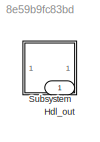
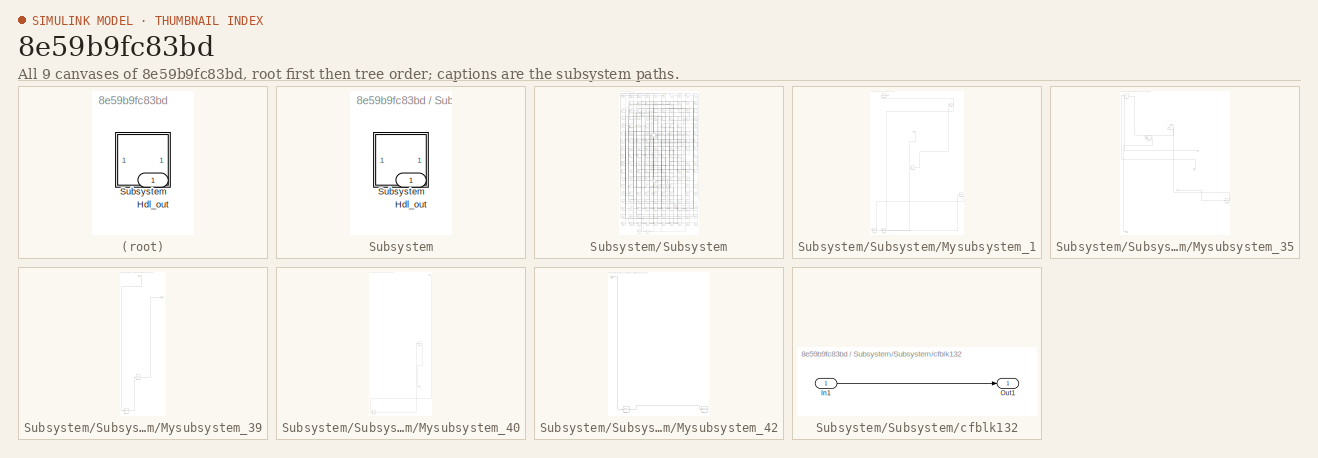
[diagram: thumbnail index - all 9 canvases of the model, root first then tree order]
MODEL slx_8e59b9fc83bd
KIND model
CONFIG AbsTol = auto
CONFIG EnableMultiTasking = off
CONFIG FixedStep = auto
CONFIG MaxStep = auto
CONFIG MinStep = auto
CONFIG RelTol = 1e-3
CONFIG SampleTimeConstraint = Unconstrained
CONFIG SolverName = VariableStepAuto
CONFIG StartTime = 0.0
CONFIG StopTime = 10.0
BLOCK [Outport] Hdl_out
  OutDataTypeStr = uint8
BLOCK [SubSystem] Subsystem
BLOCK [Outport] Subsystem/Hdl_out
  OutDataTypeStr = uint8
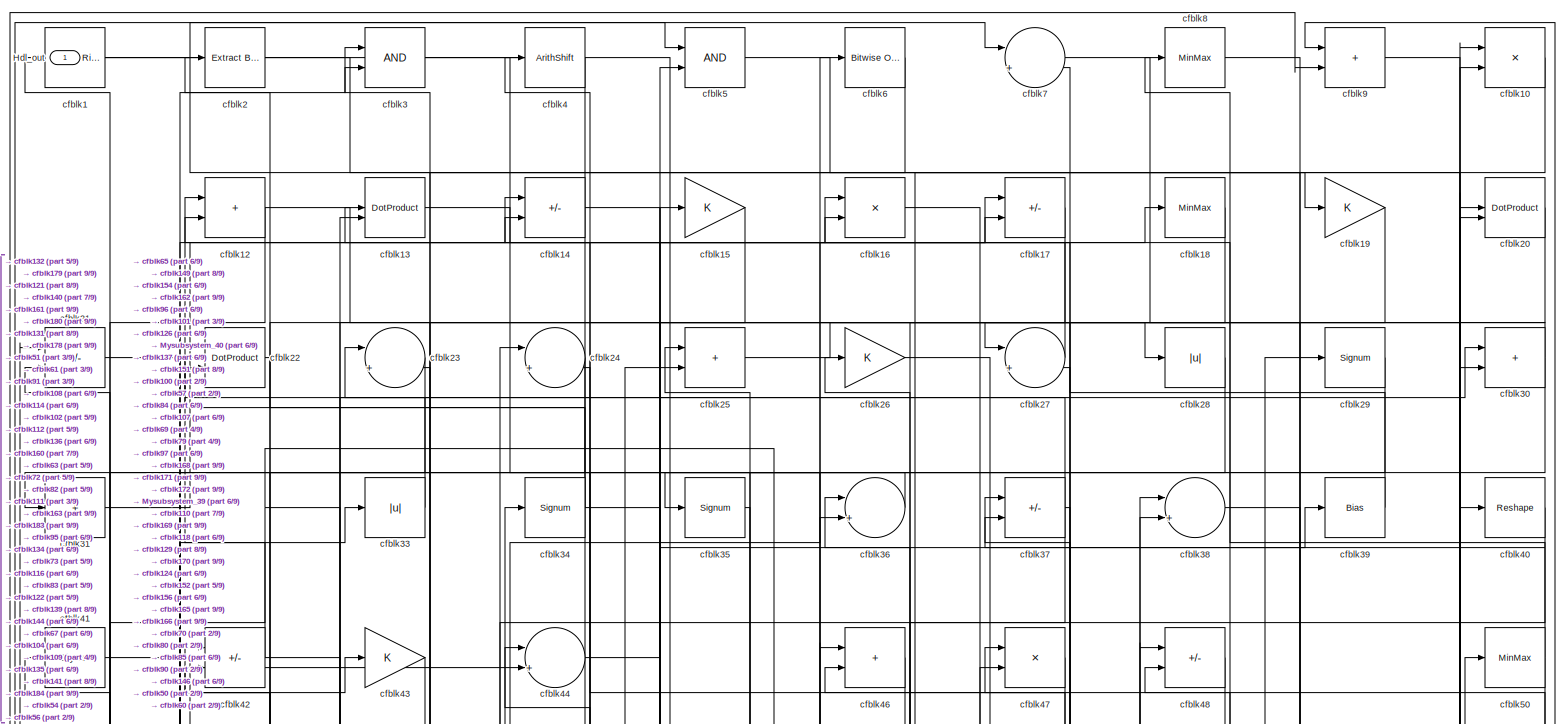
[diagram: Subsystem/Subsystem - part 1/9, full width, top band]
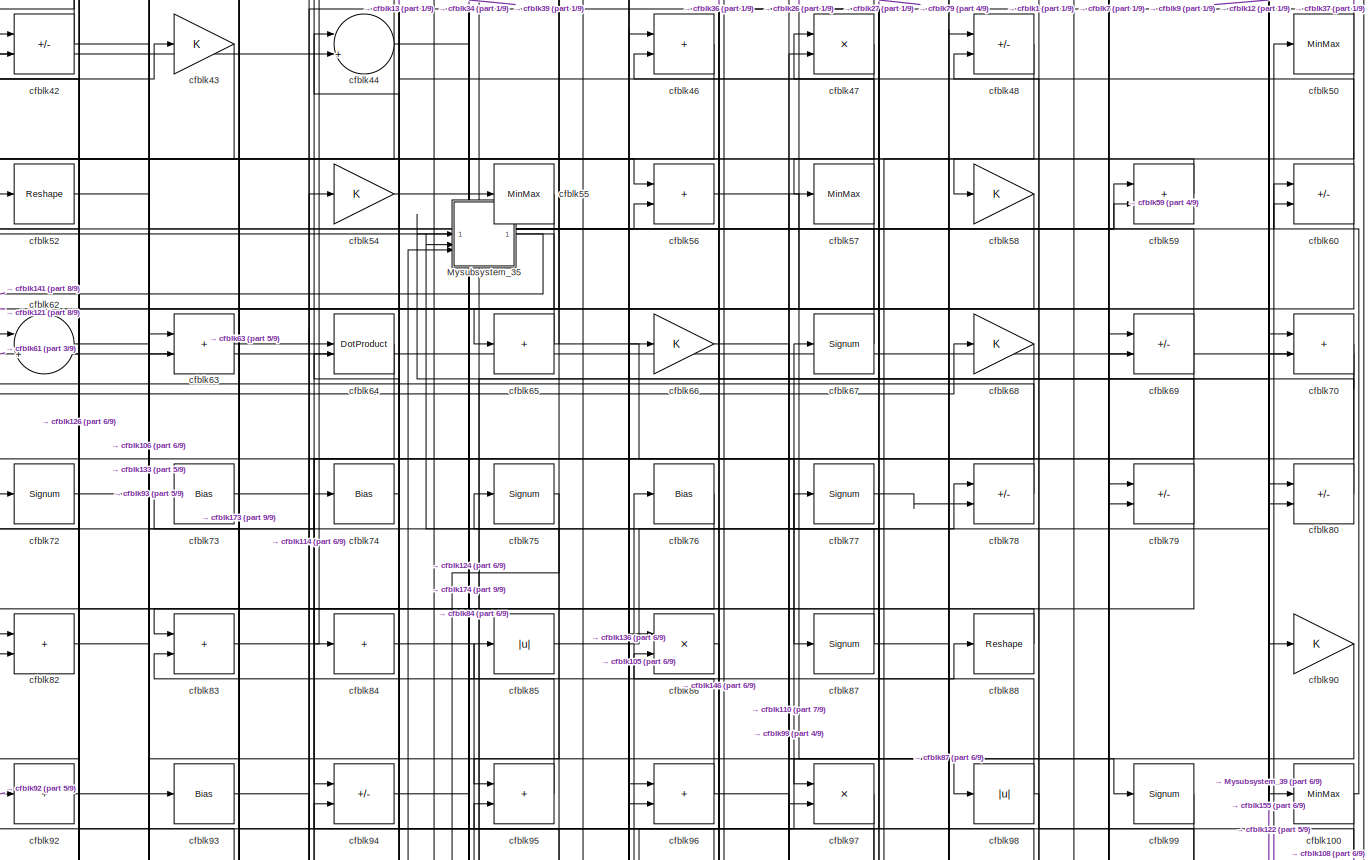
[diagram: Subsystem/Subsystem - part 2/9, full width, middle band]
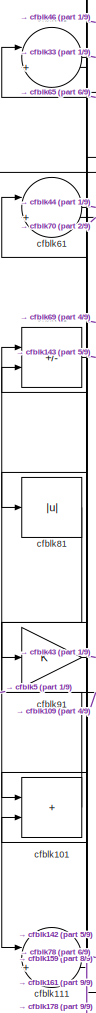
[diagram: Subsystem/Subsystem - part 3/9, middle left region]
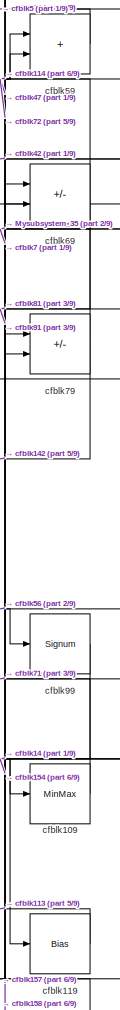
[diagram: Subsystem/Subsystem - part 4/9, middle right region]
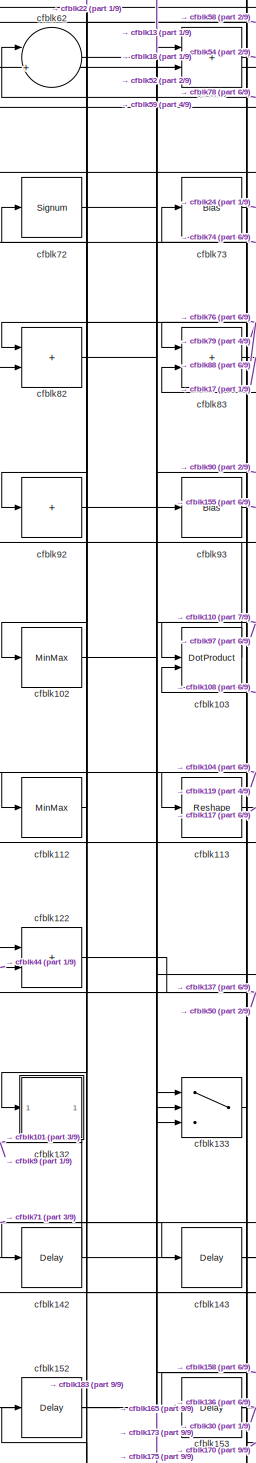
[diagram: Subsystem/Subsystem - part 5/9, middle left region]
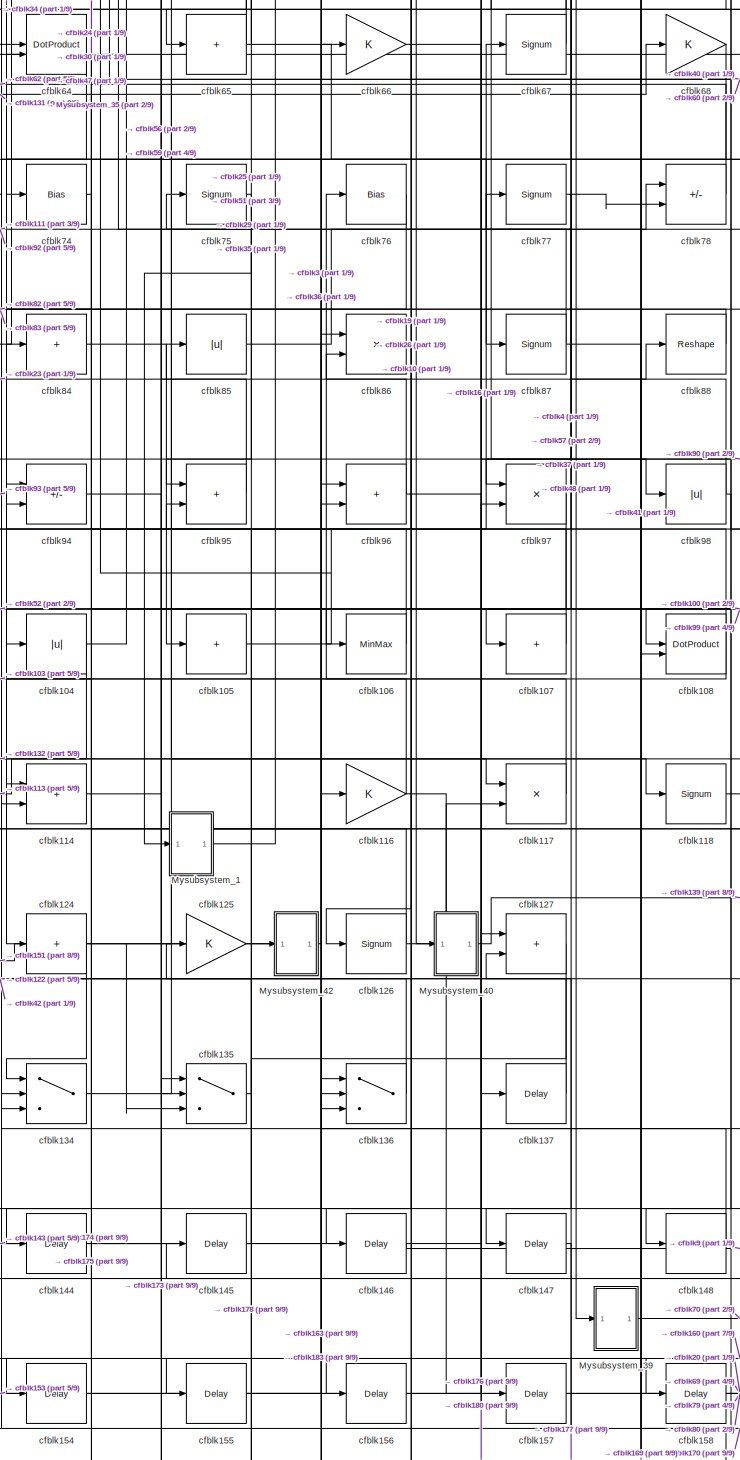
[diagram: Subsystem/Subsystem - part 6/9, central region]
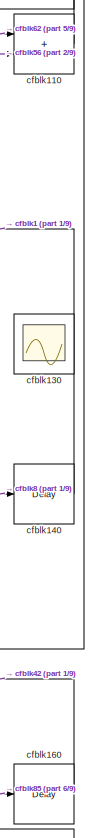
[diagram: Subsystem/Subsystem - part 7/9, bottom right region]
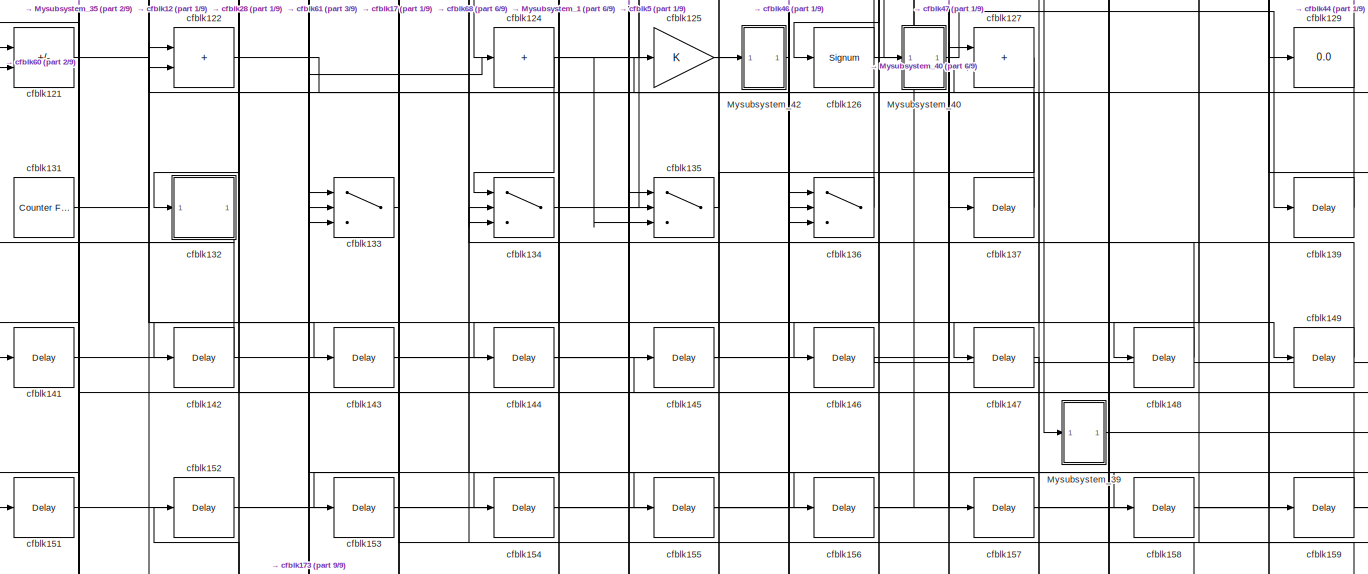
[diagram: Subsystem/Subsystem - part 8/9, full width, bottom band]
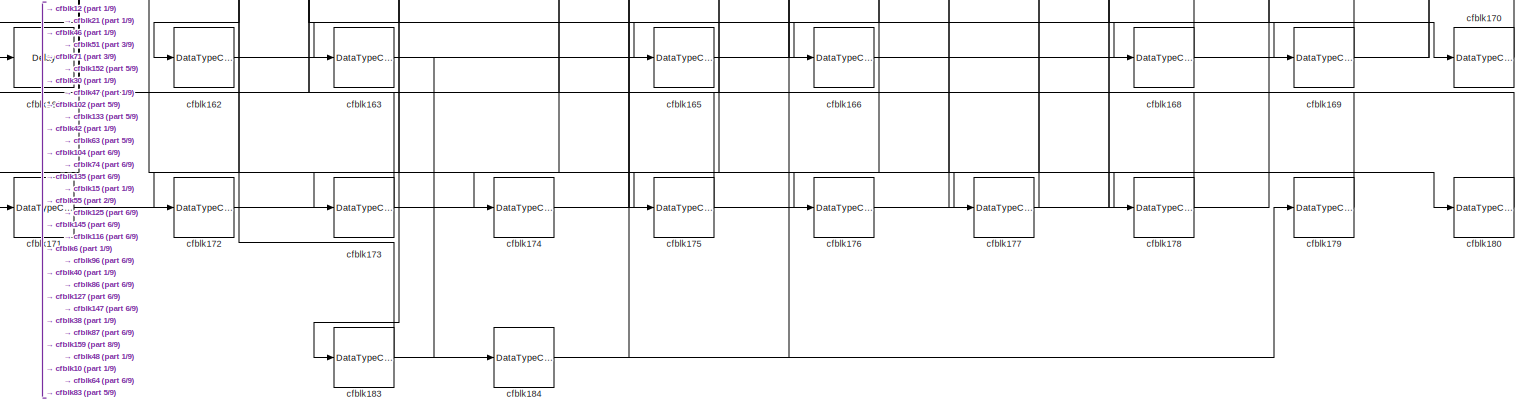
[diagram: Subsystem/Subsystem - part 9/9, full width, bottom band]
BLOCK [SubSystem] Subsystem/Subsystem
BLOCK [Outport] Subsystem/Subsystem/Hdl_out
  OutDataTypeStr = uint8
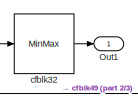
[diagram: Subsystem/Subsystem/Mysubsystem_1 - part 1/3, top left region]
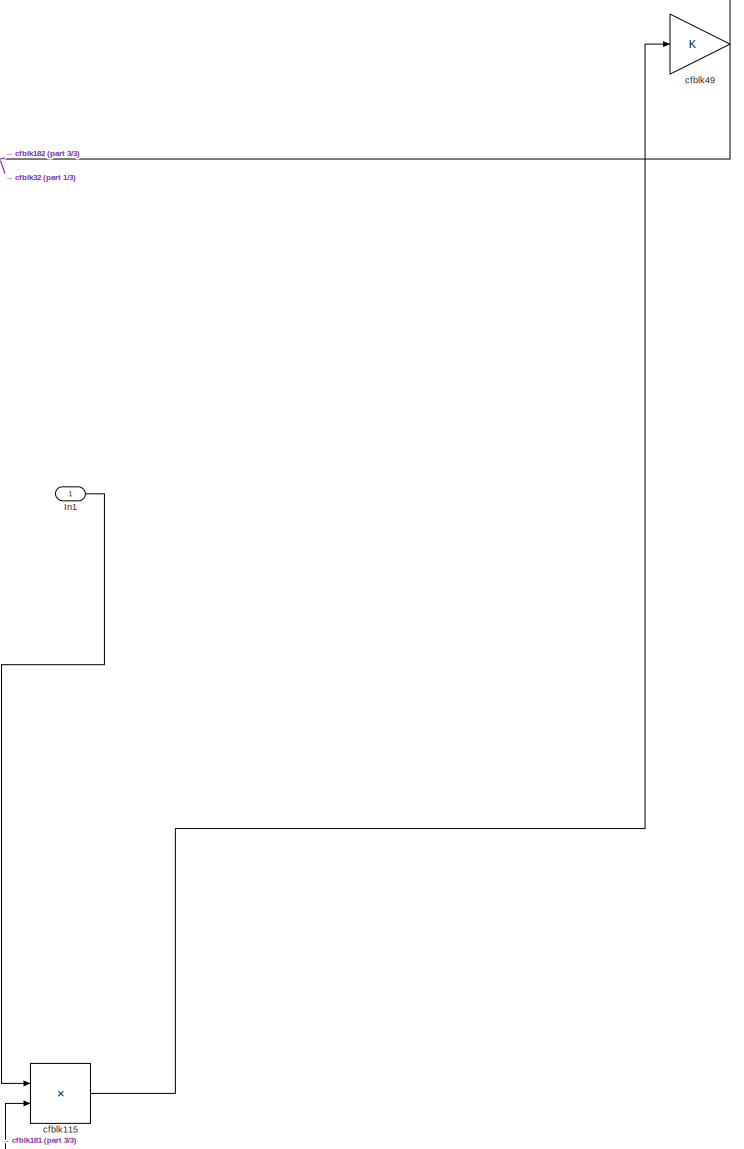
[diagram: Subsystem/Subsystem/Mysubsystem_1 - part 2/3, top center region]
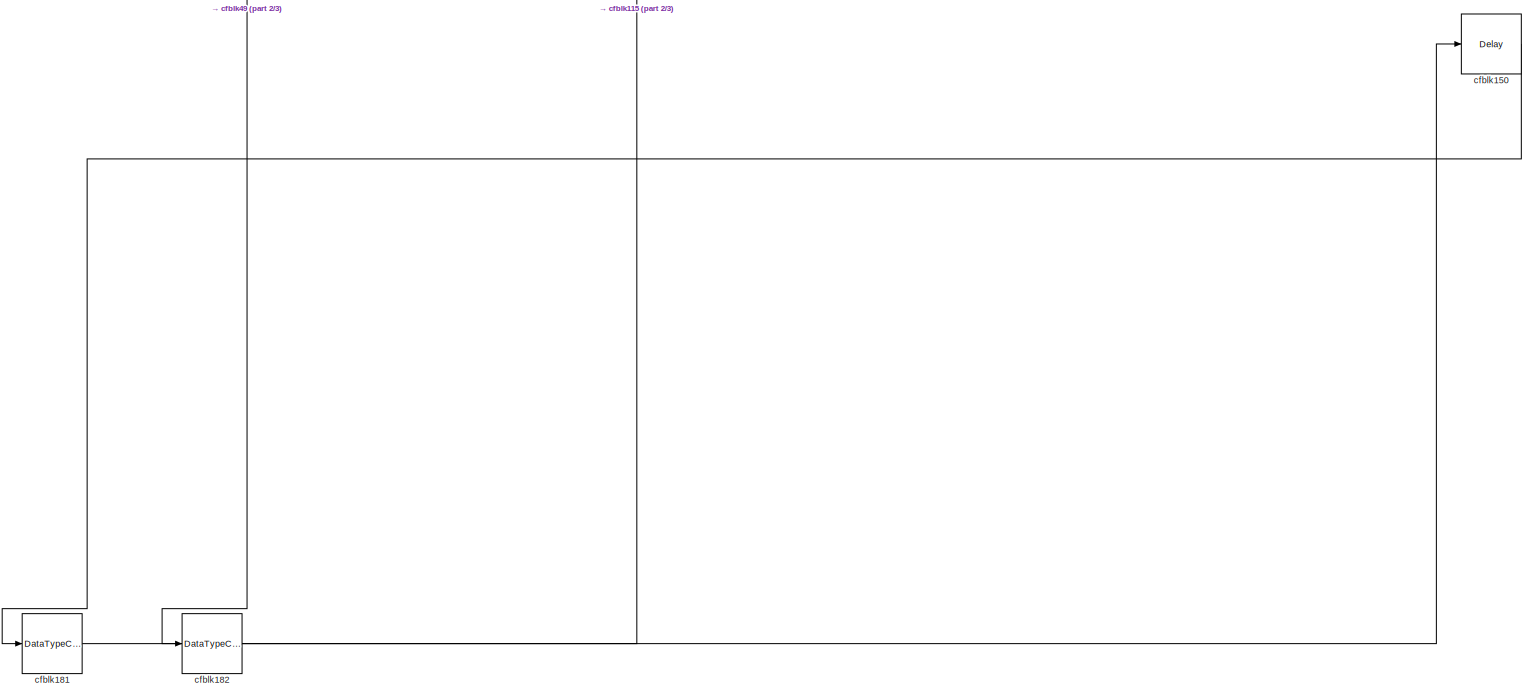
[diagram: Subsystem/Subsystem/Mysubsystem_1 - part 3/3, full width, bottom band]
BLOCK [SubSystem] Subsystem/Subsystem/Mysubsystem_1
  RTWFcnName = Mysubsystem_1
  RTWFcnNameOpts = User specified
  RTWFileNameOpts = Use function name
  RTWSystemCode = Reusable function
  TreatAsAtomicUnit = on
BLOCK [Inport] Subsystem/Subsystem/Mysubsystem_1/In1
BLOCK [Outport] Subsystem/Subsystem/Mysubsystem_1/Out1
BLOCK [Product] Subsystem/Subsystem/Mysubsystem_1/cfblk115
  Inputs = */
  RndMeth = Zero
  SaturateOnIntegerOverflow = on
BLOCK [Delay] Subsystem/Subsystem/Mysubsystem_1/cfblk150
  InputPortMap = u0
  SampleTime = 1
BLOCK [DataTypeConversion] Subsystem/Subsystem/Mysubsystem_1/cfblk181
  OutDataTypeStr = uint8
  RndMeth = Floor
  SaturateOnIntegerOverflow = off
BLOCK [DataTypeConversion] Subsystem/Subsystem/Mysubsystem_1/cfblk182
  OutDataTypeStr = uint8
  RndMeth = Floor
  SaturateOnIntegerOverflow = off
BLOCK [MinMax] Subsystem/Subsystem/Mysubsystem_1/cfblk32
BLOCK [Gain] Subsystem/Subsystem/Mysubsystem_1/cfblk49
BLOCK [SubSystem] Subsystem/Subsystem/Mysubsystem_35
  RTWFcnName = Mysubsystem_35
  RTWFcnNameOpts = User specified
  RTWFileNameOpts = Use function name
  RTWSystemCode = Reusable function
  TreatAsAtomicUnit = on
BLOCK [Inport] Subsystem/Subsystem/Mysubsystem_35/In1
BLOCK [Inport] Subsystem/Subsystem/Mysubsystem_35/In2
  Port = 2
BLOCK [Inport] Subsystem/Subsystem/Mysubsystem_35/In3
  Port = 3
BLOCK [Outport] Subsystem/Subsystem/Mysubsystem_35/Out1
BLOCK [Sum] Subsystem/Subsystem/Mysubsystem_35/cfblk11
  IconShape = rectangular
BLOCK [Reshape] Subsystem/Subsystem/Mysubsystem_35/cfblk120
BLOCK [Sum] Subsystem/Subsystem/Mysubsystem_35/cfblk45
  IconShape = rectangular
  Inputs = +
BLOCK [Sum] Subsystem/Subsystem/Mysubsystem_35/cfblk53
  IconShape = rectangular
BLOCK [SubSystem] Subsystem/Subsystem/Mysubsystem_39
  RTWFcnName = Mysubsystem_39
  RTWFcnNameOpts = User specified
  RTWFileNameOpts = Use function name
  RTWSystemCode = Reusable function
  TreatAsAtomicUnit = on
BLOCK [Inport] Subsystem/Subsystem/Mysubsystem_39/In1
BLOCK [Outport] Subsystem/Subsystem/Mysubsystem_39/Out1
BLOCK [Delay] Subsystem/Subsystem/Mysubsystem_39/cfblk138
  InputPortMap = u0
  SampleTime = 1
BLOCK [DataTypeConversion] Subsystem/Subsystem/Mysubsystem_39/cfblk167
  OutDataTypeStr = uint8
  RndMeth = Floor
  SaturateOnIntegerOverflow = off
BLOCK [SubSystem] Subsystem/Subsystem/Mysubsystem_40
  RTWFcnName = Mysubsystem_40
  RTWFcnNameOpts = User specified
  RTWFileNameOpts = Use function name
  RTWSystemCode = Reusable function
  TreatAsAtomicUnit = on
BLOCK [Inport] Subsystem/Subsystem/Mysubsystem_40/In1
BLOCK [Outport] Subsystem/Subsystem/Mysubsystem_40/Out1
BLOCK [DataTypeConversion] Subsystem/Subsystem/Mysubsystem_40/cfblk164
  OutDataTypeStr = uint8
  RndMeth = Floor
  SaturateOnIntegerOverflow = off
BLOCK [Signum] Subsystem/Subsystem/Mysubsystem_40/cfblk89
BLOCK [SubSystem] Subsystem/Subsystem/Mysubsystem_42
  RTWFcnName = Mysubsystem_42
  RTWFcnNameOpts = User specified
  RTWFileNameOpts = Use function name
  RTWSystemCode = Reusable function
  TreatAsAtomicUnit = on
BLOCK [Inport] Subsystem/Subsystem/Mysubsystem_42/In1
BLOCK [Signum] Subsystem/Subsystem/Mysubsystem_42/cfblk123
BLOCK [ToWorkspace] Subsystem/Subsystem/Mysubsystem_42/cfblk128
  MaxDataPoints = inf
  SampleTime = -1
  SaveFormat = Timeseries
  VariableName = simout
BLOCK [Reference] Subsystem/Subsystem/cfblk1  REF=hdlsllib/Logic and Bit
Operations/Detect Rise
Nonnegative
  SourceBlock = hdlsllib/Logic and Bit\nOperations/Detect Rise\nNonnegative
  SourceType = Detect Rise Nonnegative
BLOCK [Product] Subsystem/Subsystem/cfblk10
  Inputs = */
  OutDataTypeStr = uint8
  RndMeth = Zero
  SaturateOnIntegerOverflow = on
BLOCK [MinMax] Subsystem/Subsystem/cfblk100
  OutDataTypeStr = uint8
BLOCK [Sum] Subsystem/Subsystem/cfblk101
  IconShape = rectangular
  OutDataTypeStr = uint8
BLOCK [MinMax] Subsystem/Subsystem/cfblk102
  OutDataTypeStr = uint8
BLOCK [DotProduct] Subsystem/Subsystem/cfblk103
  OutDataTypeStr = uint8
BLOCK [Abs] Subsystem/Subsystem/cfblk104
  OutDataTypeStr = uint8
  SaturateOnIntegerOverflow = off
BLOCK [Sum] Subsystem/Subsystem/cfblk105
  IconShape = rectangular
  Inputs = +
  OutDataTypeStr = uint8
BLOCK [MinMax] Subsystem/Subsystem/cfblk106
  OutDataTypeStr = uint8
BLOCK [Sum] Subsystem/Subsystem/cfblk107
  IconShape = rectangular
  Inputs = +
  OutDataTypeStr = uint8
BLOCK [DotProduct] Subsystem/Subsystem/cfblk108
  OutDataTypeStr = uint8
BLOCK [MinMax] Subsystem/Subsystem/cfblk109
  OutDataTypeStr = uint8
BLOCK [Sum] Subsystem/Subsystem/cfblk110
  IconShape = rectangular
  OutDataTypeStr = uint8
BLOCK [Sum] Subsystem/Subsystem/cfblk111
  Inputs = |++
  OutDataTypeStr = uint8
BLOCK [MinMax] Subsystem/Subsystem/cfblk112
  OutDataTypeStr = uint8
BLOCK [Reshape] Subsystem/Subsystem/cfblk113
BLOCK [Sum] Subsystem/Subsystem/cfblk114
  IconShape = rectangular
  OutDataTypeStr = uint8
BLOCK [Gain] Subsystem/Subsystem/cfblk116
  OutDataTypeStr = uint8
BLOCK [Product] Subsystem/Subsystem/cfblk117
  Inputs = */
  OutDataTypeStr = uint8
  RndMeth = Zero
  SaturateOnIntegerOverflow = on
BLOCK [Signum] Subsystem/Subsystem/cfblk118
BLOCK [Bias] Subsystem/Subsystem/cfblk119
  Bias = 0.0
  SaturateOnIntegerOverflow = off
BLOCK [Sum] Subsystem/Subsystem/cfblk12
  IconShape = rectangular
  OutDataTypeStr = uint8
BLOCK [Sum] Subsystem/Subsystem/cfblk121
  IconShape = rectangular
  Inputs = +-
  OutDataTypeStr = uint8
BLOCK [Sum] Subsystem/Subsystem/cfblk122
  IconShape = rectangular
  OutDataTypeStr = uint8
BLOCK [Sum] Subsystem/Subsystem/cfblk124
  IconShape = rectangular
  Inputs = +
  OutDataTypeStr = uint8
BLOCK [Gain] Subsystem/Subsystem/cfblk125
  OutDataTypeStr = uint8
BLOCK [Signum] Subsystem/Subsystem/cfblk126
BLOCK [Sum] Subsystem/Subsystem/cfblk127
  IconShape = rectangular
  OutDataTypeStr = uint8
BLOCK [Display] Subsystem/Subsystem/cfblk129
  Decimation = 1
BLOCK [DotProduct] Subsystem/Subsystem/cfblk13
  OutDataTypeStr = uint8
BLOCK [Scope] Subsystem/Subsystem/cfblk130
  Floating = on
  NumInputPorts = 1
  ScopeSpecificationString = Simulink.scopes.TimeScopeBlockCfg('CurrentConfiguration', extmgr.ConfigurationSet(extmgr.Configuration('Core','General UI',true,'FigureColor',[0.156862745098039 0.156862745098039 0.156862745098039]),extmgr.Configuration('Core','Source UI',true),extmgr.Configuration('Sources','WiredSimulink',true,'DataLoggingSaveFormat','StructureWithTime','DataLoggingLimitDataPoints',true,'DataLoggingDecimation','...<+2674ch>
BLOCK [Reference] Subsystem/Subsystem/cfblk131  REF=hdlsllib/Sources/Counter
Free-Running
  SourceBlock = hdlsllib/Sources/Counter\nFree-Running
  SourceType = Counter Free-Running
BLOCK [SubSystem] Subsystem/Subsystem/cfblk132
  LibrarySourceBlock = hdlsllib/Ports &\nSubsystems/Subsystem
BLOCK [Inport] Subsystem/Subsystem/cfblk132/In1
BLOCK [Outport] Subsystem/Subsystem/cfblk132/Out1
BLOCK [Switch] Subsystem/Subsystem/cfblk133
  InputSameDT = off
  OutDataTypeStr = uint8
  SaturateOnIntegerOverflow = off
BLOCK [Switch] Subsystem/Subsystem/cfblk134
  InputSameDT = off
  OutDataTypeStr = uint8
  SaturateOnIntegerOverflow = off
BLOCK [Switch] Subsystem/Subsystem/cfblk135
  InputSameDT = off
  OutDataTypeStr = uint8
  SaturateOnIntegerOverflow = off
BLOCK [Switch] Subsystem/Subsystem/cfblk136
  InputSameDT = off
  OutDataTypeStr = uint8
  SaturateOnIntegerOverflow = off
BLOCK [Delay] Subsystem/Subsystem/cfblk137
  InputPortMap = u0
  SampleTime = 1
BLOCK [Delay] Subsystem/Subsystem/cfblk139
  InputPortMap = u0
  SampleTime = 1
BLOCK [Sum] Subsystem/Subsystem/cfblk14
  IconShape = rectangular
  Inputs = +-
  OutDataTypeStr = uint8
BLOCK [Delay] Subsystem/Subsystem/cfblk140
  InputPortMap = u0
  SampleTime = 1
BLOCK [Delay] Subsystem/Subsystem/cfblk141
  InputPortMap = u0
  SampleTime = 1
BLOCK [Delay] Subsystem/Subsystem/cfblk142
  InputPortMap = u0
  SampleTime = 1
BLOCK [Delay] Subsystem/Subsystem/cfblk143
  InputPortMap = u0
  SampleTime = 1
BLOCK [Delay] Subsystem/Subsystem/cfblk144
  InputPortMap = u0
  SampleTime = 1
BLOCK [Delay] Subsystem/Subsystem/cfblk145
  InputPortMap = u0
  SampleTime = 1
BLOCK [Delay] Subsystem/Subsystem/cfblk146
  InputPortMap = u0
  SampleTime = 1
BLOCK [Delay] Subsystem/Subsystem/cfblk147
  InputPortMap = u0
  SampleTime = 1
BLOCK [Delay] Subsystem/Subsystem/cfblk148
  InputPortMap = u0
  SampleTime = 1
BLOCK [Delay] Subsystem/Subsystem/cfblk149
  InputPortMap = u0
  SampleTime = 1
BLOCK [Gain] Subsystem/Subsystem/cfblk15
  OutDataTypeStr = uint8
BLOCK [Delay] Subsystem/Subsystem/cfblk151
  InputPortMap = u0
  SampleTime = 1
BLOCK [Delay] Subsystem/Subsystem/cfblk152
  InputPortMap = u0
  SampleTime = 1
BLOCK [Delay] Subsystem/Subsystem/cfblk153
  InputPortMap = u0
  SampleTime = 1
BLOCK [Delay] Subsystem/Subsystem/cfblk154
  InputPortMap = u0
  SampleTime = 1
BLOCK [Delay] Subsystem/Subsystem/cfblk155
  InputPortMap = u0
  SampleTime = 1
BLOCK [Delay] Subsystem/Subsystem/cfblk156
  InputPortMap = u0
  SampleTime = 1
BLOCK [Delay] Subsystem/Subsystem/cfblk157
  InputPortMap = u0
  SampleTime = 1
BLOCK [Delay] Subsystem/Subsystem/cfblk158
  InputPortMap = u0
  SampleTime = 1
BLOCK [Delay] Subsystem/Subsystem/cfblk159
  InputPortMap = u0
  SampleTime = 1
BLOCK [Product] Subsystem/Subsystem/cfblk16
  Inputs = */
  OutDataTypeStr = uint8
  RndMeth = Zero
  SaturateOnIntegerOverflow = on
BLOCK [Delay] Subsystem/Subsystem/cfblk160
  InputPortMap = u0
  SampleTime = 1
BLOCK [Delay] Subsystem/Subsystem/cfblk161
  InputPortMap = u0
  SampleTime = 1
BLOCK [DataTypeConversion] Subsystem/Subsystem/cfblk162
  OutDataTypeStr = uint8
  RndMeth = Floor
  SaturateOnIntegerOverflow = off
BLOCK [DataTypeConversion] Subsystem/Subsystem/cfblk163
  OutDataTypeStr = uint8
  RndMeth = Floor
  SaturateOnIntegerOverflow = off
BLOCK [DataTypeConversion] Subsystem/Subsystem/cfblk165
  OutDataTypeStr = uint8
  RndMeth = Floor
  SaturateOnIntegerOverflow = off
BLOCK [DataTypeConversion] Subsystem/Subsystem/cfblk166
  OutDataTypeStr = uint8
  RndMeth = Floor
  SaturateOnIntegerOverflow = off
BLOCK [DataTypeConversion] Subsystem/Subsystem/cfblk168
  OutDataTypeStr = uint8
  RndMeth = Floor
  SaturateOnIntegerOverflow = off
BLOCK [DataTypeConversion] Subsystem/Subsystem/cfblk169
  OutDataTypeStr = uint8
  RndMeth = Floor
  SaturateOnIntegerOverflow = off
BLOCK [Sum] Subsystem/Subsystem/cfblk17
  IconShape = rectangular
  Inputs = +-
  OutDataTypeStr = uint8
BLOCK [DataTypeConversion] Subsystem/Subsystem/cfblk170
  OutDataTypeStr = uint8
  RndMeth = Floor
  SaturateOnIntegerOverflow = off
BLOCK [DataTypeConversion] Subsystem/Subsystem/cfblk171
  OutDataTypeStr = uint8
  RndMeth = Floor
  SaturateOnIntegerOverflow = off
BLOCK [DataTypeConversion] Subsystem/Subsystem/cfblk172
  OutDataTypeStr = uint8
  RndMeth = Floor
  SaturateOnIntegerOverflow = off
BLOCK [DataTypeConversion] Subsystem/Subsystem/cfblk173
  OutDataTypeStr = uint8
  RndMeth = Floor
  SaturateOnIntegerOverflow = off
BLOCK [DataTypeConversion] Subsystem/Subsystem/cfblk174
  OutDataTypeStr = uint8
  RndMeth = Floor
  SaturateOnIntegerOverflow = off
BLOCK [DataTypeConversion] Subsystem/Subsystem/cfblk175
  OutDataTypeStr = uint8
  RndMeth = Floor
  SaturateOnIntegerOverflow = off
BLOCK [DataTypeConversion] Subsystem/Subsystem/cfblk176
  OutDataTypeStr = uint8
  RndMeth = Floor
  SaturateOnIntegerOverflow = off
BLOCK [DataTypeConversion] Subsystem/Subsystem/cfblk177
  OutDataTypeStr = uint8
  RndMeth = Floor
  SaturateOnIntegerOverflow = off
BLOCK [DataTypeConversion] Subsystem/Subsystem/cfblk178
  OutDataTypeStr = uint8
  RndMeth = Floor
  SaturateOnIntegerOverflow = off
BLOCK [DataTypeConversion] Subsystem/Subsystem/cfblk179
  OutDataTypeStr = uint8
  RndMeth = Floor
  SaturateOnIntegerOverflow = off
BLOCK [MinMax] Subsystem/Subsystem/cfblk18
  OutDataTypeStr = uint8
BLOCK [DataTypeConversion] Subsystem/Subsystem/cfblk180
  OutDataTypeStr = uint8
  RndMeth = Floor
  SaturateOnIntegerOverflow = off
BLOCK [DataTypeConversion] Subsystem/Subsystem/cfblk183
  OutDataTypeStr = uint8
  RndMeth = Floor
  SaturateOnIntegerOverflow = off
BLOCK [DataTypeConversion] Subsystem/Subsystem/cfblk184
  OutDataTypeStr = uint8
  RndMeth = Floor
  SaturateOnIntegerOverflow = off
BLOCK [Gain] Subsystem/Subsystem/cfblk19
  OutDataTypeStr = uint8
BLOCK [Reference] Subsystem/Subsystem/cfblk2  REF=simulink/Logic and Bit
Operations/Extract Bits
  LibrarySourceBlock = hdlsllib/Logic and Bit\nOperations/Extract Bits
  SourceBlock = simulink/Logic and Bit\nOperations/Extract Bits
  SourceType = Extract Bits
BLOCK [DotProduct] Subsystem/Subsystem/cfblk20
  OutDataTypeStr = uint8
BLOCK [Sum] Subsystem/Subsystem/cfblk21
  IconShape = rectangular
  Inputs = +-
  OutDataTypeStr = uint8
BLOCK [DotProduct] Subsystem/Subsystem/cfblk22
  OutDataTypeStr = uint8
BLOCK [Sum] Subsystem/Subsystem/cfblk23
  Inputs = |++
  OutDataTypeStr = uint8
BLOCK [Sum] Subsystem/Subsystem/cfblk24
  Inputs = |++
  OutDataTypeStr = uint8
BLOCK [Sum] Subsystem/Subsystem/cfblk25
  IconShape = rectangular
  OutDataTypeStr = uint8
BLOCK [Gain] Subsystem/Subsystem/cfblk26
  OutDataTypeStr = uint8
BLOCK [Sum] Subsystem/Subsystem/cfblk27
  Inputs = |++
  OutDataTypeStr = uint8
BLOCK [Abs] Subsystem/Subsystem/cfblk28
  OutDataTypeStr = uint8
  SaturateOnIntegerOverflow = off
BLOCK [Signum] Subsystem/Subsystem/cfblk29
BLOCK [Logic] Subsystem/Subsystem/cfblk3
  AllPortsSameDT = off
  OutDataTypeStr = boolean
BLOCK [Sum] Subsystem/Subsystem/cfblk30
  IconShape = rectangular
  OutDataTypeStr = uint8
BLOCK [Sum] Subsystem/Subsystem/cfblk31
  IconShape = rectangular
  Inputs = +
  OutDataTypeStr = uint8
BLOCK [Abs] Subsystem/Subsystem/cfblk33
  OutDataTypeStr = uint8
  SaturateOnIntegerOverflow = off
BLOCK [Signum] Subsystem/Subsystem/cfblk34
BLOCK [Signum] Subsystem/Subsystem/cfblk35
BLOCK [Sum] Subsystem/Subsystem/cfblk36
  Inputs = |++
  OutDataTypeStr = uint8
BLOCK [Sum] Subsystem/Subsystem/cfblk37
  IconShape = rectangular
  Inputs = +-
  OutDataTypeStr = uint8
BLOCK [Sum] Subsystem/Subsystem/cfblk38
  Inputs = |++
  OutDataTypeStr = uint8
BLOCK [Bias] Subsystem/Subsystem/cfblk39
  Bias = 0.0
  SaturateOnIntegerOverflow = off
BLOCK [ArithShift] Subsystem/Subsystem/cfblk4
  BitShiftNumber = 8
  InputPortMap = u0
BLOCK [Reshape] Subsystem/Subsystem/cfblk40
BLOCK [Signum] Subsystem/Subsystem/cfblk41
BLOCK [Sum] Subsystem/Subsystem/cfblk42
  IconShape = rectangular
  Inputs = +-
  OutDataTypeStr = uint8
BLOCK [Gain] Subsystem/Subsystem/cfblk43
  OutDataTypeStr = uint8
BLOCK [Sum] Subsystem/Subsystem/cfblk44
  Inputs = |++
  OutDataTypeStr = uint8
BLOCK [Sum] Subsystem/Subsystem/cfblk46
  IconShape = rectangular
  OutDataTypeStr = uint8
BLOCK [Product] Subsystem/Subsystem/cfblk47
  Inputs = */
  OutDataTypeStr = uint8
  RndMeth = Zero
  SaturateOnIntegerOverflow = on
BLOCK [Sum] Subsystem/Subsystem/cfblk48
  IconShape = rectangular
  Inputs = +-
  OutDataTypeStr = uint8
BLOCK [Logic] Subsystem/Subsystem/cfblk5
  AllPortsSameDT = off
  OutDataTypeStr = boolean
BLOCK [MinMax] Subsystem/Subsystem/cfblk50
  OutDataTypeStr = uint8
BLOCK [Sum] Subsystem/Subsystem/cfblk51
  Inputs = |++
  OutDataTypeStr = uint8
BLOCK [Reshape] Subsystem/Subsystem/cfblk52
BLOCK [Gain] Subsystem/Subsystem/cfblk54
  OutDataTypeStr = uint8
BLOCK [MinMax] Subsystem/Subsystem/cfblk55
  OutDataTypeStr = uint8
BLOCK [Sum] Subsystem/Subsystem/cfblk56
  IconShape = rectangular
  OutDataTypeStr = uint8
BLOCK [MinMax] Subsystem/Subsystem/cfblk57
  OutDataTypeStr = uint8
BLOCK [Gain] Subsystem/Subsystem/cfblk58
  OutDataTypeStr = uint8
BLOCK [Sum] Subsystem/Subsystem/cfblk59
  IconShape = rectangular
  OutDataTypeStr = uint8
BLOCK [Reference] Subsystem/Subsystem/cfblk6  REF=simulink/Logic and Bit
Operations/Bitwise
Operator
  LibrarySourceBlock = hdlsllib/Logic and Bit\nOperations/Bitwise\nOperator
  SourceBlock = simulink/Logic and Bit\nOperations/Bitwise\nOperator
  SourceType = Bitwise Operator
BLOCK [Sum] Subsystem/Subsystem/cfblk60
  IconShape = rectangular
  Inputs = +-
  OutDataTypeStr = uint8
BLOCK [Sum] Subsystem/Subsystem/cfblk61
  Inputs = |++
  OutDataTypeStr = uint8
BLOCK [Sum] Subsystem/Subsystem/cfblk62
  Inputs = |++
  OutDataTypeStr = uint8
BLOCK [Sum] Subsystem/Subsystem/cfblk63
  IconShape = rectangular
  OutDataTypeStr = uint8
BLOCK [DotProduct] Subsystem/Subsystem/cfblk64
  OutDataTypeStr = uint8
BLOCK [Sum] Subsystem/Subsystem/cfblk65
  IconShape = rectangular
  Inputs = +
  OutDataTypeStr = uint8
BLOCK [Gain] Subsystem/Subsystem/cfblk66
  OutDataTypeStr = uint8
BLOCK [Signum] Subsystem/Subsystem/cfblk67
BLOCK [Gain] Subsystem/Subsystem/cfblk68
  OutDataTypeStr = uint8
BLOCK [Sum] Subsystem/Subsystem/cfblk69
  IconShape = rectangular
  Inputs = +-
  OutDataTypeStr = uint8
BLOCK [Sum] Subsystem/Subsystem/cfblk7
  Inputs = |++
  OutDataTypeStr = uint8
BLOCK [Sum] Subsystem/Subsystem/cfblk70
  IconShape = rectangular
  OutDataTypeStr = uint8
BLOCK [Sum] Subsystem/Subsystem/cfblk71
  IconShape = rectangular
  Inputs = +-
  OutDataTypeStr = uint8
BLOCK [Signum] Subsystem/Subsystem/cfblk72
BLOCK [Bias] Subsystem/Subsystem/cfblk73
  Bias = 0.0
  SaturateOnIntegerOverflow = off
BLOCK [Bias] Subsystem/Subsystem/cfblk74
  Bias = 0.0
  SaturateOnIntegerOverflow = off
BLOCK [Signum] Subsystem/Subsystem/cfblk75
BLOCK [Bias] Subsystem/Subsystem/cfblk76
  Bias = 0.0
  SaturateOnIntegerOverflow = off
BLOCK [Signum] Subsystem/Subsystem/cfblk77
BLOCK [Sum] Subsystem/Subsystem/cfblk78
  IconShape = rectangular
  Inputs = +-
  OutDataTypeStr = uint8
BLOCK [Sum] Subsystem/Subsystem/cfblk79
  IconShape = rectangular
  Inputs = +-
  OutDataTypeStr = uint8
BLOCK [MinMax] Subsystem/Subsystem/cfblk8
  OutDataTypeStr = uint8
BLOCK [Sum] Subsystem/Subsystem/cfblk80
  IconShape = rectangular
  Inputs = +-
  OutDataTypeStr = uint8
BLOCK [Abs] Subsystem/Subsystem/cfblk81
  OutDataTypeStr = uint8
  SaturateOnIntegerOverflow = off
BLOCK [Sum] Subsystem/Subsystem/cfblk82
  IconShape = rectangular
  OutDataTypeStr = uint8
BLOCK [Sum] Subsystem/Subsystem/cfblk83
  IconShape = rectangular
  OutDataTypeStr = uint8
BLOCK [Sum] Subsystem/Subsystem/cfblk84
  IconShape = rectangular
  Inputs = +
  OutDataTypeStr = uint8
BLOCK [Abs] Subsystem/Subsystem/cfblk85
  OutDataTypeStr = uint8
  SaturateOnIntegerOverflow = off
BLOCK [Product] Subsystem/Subsystem/cfblk86
  Inputs = */
  OutDataTypeStr = uint8
  RndMeth = Zero
  SaturateOnIntegerOverflow = on
BLOCK [Signum] Subsystem/Subsystem/cfblk87
BLOCK [Reshape] Subsystem/Subsystem/cfblk88
BLOCK [Sum] Subsystem/Subsystem/cfblk9
  IconShape = rectangular
  OutDataTypeStr = uint8
BLOCK [Gain] Subsystem/Subsystem/cfblk90
  OutDataTypeStr = uint8
BLOCK [Gain] Subsystem/Subsystem/cfblk91
  OutDataTypeStr = uint8
BLOCK [Sum] Subsystem/Subsystem/cfblk92
  IconShape = rectangular
  Inputs = +
  OutDataTypeStr = uint8
BLOCK [Bias] Subsystem/Subsystem/cfblk93
  Bias = 0.0
  SaturateOnIntegerOverflow = off
BLOCK [Sum] Subsystem/Subsystem/cfblk94
  IconShape = rectangular
  Inputs = +-
  OutDataTypeStr = uint8
BLOCK [Sum] Subsystem/Subsystem/cfblk95
  IconShape = rectangular
  OutDataTypeStr = uint8
BLOCK [Sum] Subsystem/Subsystem/cfblk96
  IconShape = rectangular
  OutDataTypeStr = uint8
BLOCK [Product] Subsystem/Subsystem/cfblk97
  Inputs = */
  OutDataTypeStr = uint8
  RndMeth = Zero
  SaturateOnIntegerOverflow = on
BLOCK [Abs] Subsystem/Subsystem/cfblk98
  OutDataTypeStr = uint8
  SaturateOnIntegerOverflow = off
BLOCK [Signum] Subsystem/Subsystem/cfblk99
LINE Subsystem/Subsystem/Mysubsystem_1/In1:1 -> Subsystem/Subsystem/Mysubsystem_1/cfblk115:1
LINE Subsystem/Subsystem/Mysubsystem_1/cfblk115:1 -> Subsystem/Subsystem/Mysubsystem_1/cfblk49:1
LINE Subsystem/Subsystem/Mysubsystem_1/cfblk150:1 -> Subsystem/Subsystem/Mysubsystem_1/cfblk181:1
LINE Subsystem/Subsystem/Mysubsystem_1/cfblk181:1 -> Subsystem/Subsystem/Mysubsystem_1/cfblk115:2
LINE Subsystem/Subsystem/Mysubsystem_1/cfblk182:1 -> Subsystem/Subsystem/Mysubsystem_1/cfblk150:1
LINE Subsystem/Subsystem/Mysubsystem_1/cfblk32:1 -> Subsystem/Subsystem/Mysubsystem_1/Out1:1
NET Subsystem/Subsystem/Mysubsystem_1/cfblk49:1 -> Subsystem/Subsystem/Mysubsystem_1/cfblk182:1, Subsystem/Subsystem/Mysubsystem_1/cfblk32:1
NET Subsystem/Subsystem/Mysubsystem_1:1 -> Subsystem/Subsystem/Mysubsystem_42:1, Subsystem/Subsystem/cfblk151:1
LINE Subsystem/Subsystem/Mysubsystem_35/In1:1 -> Subsystem/Subsystem/Mysubsystem_35/cfblk11:2
LINE Subsystem/Subsystem/Mysubsystem_35/In2:1 -> Subsystem/Subsystem/Mysubsystem_35/cfblk11:1
LINE Subsystem/Subsystem/Mysubsystem_35/In3:1 -> Subsystem/Subsystem/Mysubsystem_35/cfblk120:1
LINE Subsystem/Subsystem/Mysubsystem_35/cfblk11:1 -> Subsystem/Subsystem/Mysubsystem_35/cfblk53:2
LINE Subsystem/Subsystem/Mysubsystem_35/cfblk120:1 -> Subsystem/Subsystem/Mysubsystem_35/cfblk45:1
LINE Subsystem/Subsystem/Mysubsystem_35/cfblk45:1 -> Subsystem/Subsystem/Mysubsystem_35/cfblk53:1
LINE Subsystem/Subsystem/Mysubsystem_35/cfblk53:1 -> Subsystem/Subsystem/Mysubsystem_35/Out1:1
LINE Subsystem/Subsystem/Mysubsystem_35:1 -> Subsystem/Subsystem/cfblk141:1
LINE Subsystem/Subsystem/Mysubsystem_39/In1:1 -> Subsystem/Subsystem/Mysubsystem_39/cfblk167:1
LINE Subsystem/Subsystem/Mysubsystem_39/cfblk138:1 -> Subsystem/Subsystem/Mysubsystem_39/Out1:1
LINE Subsystem/Subsystem/Mysubsystem_39/cfblk167:1 -> Subsystem/Subsystem/Mysubsystem_39/cfblk138:1
LINE Subsystem/Subsystem/Mysubsystem_39:1 -> Subsystem/Subsystem/cfblk70:1
LINE Subsystem/Subsystem/Mysubsystem_40/In1:1 -> Subsystem/Subsystem/Mysubsystem_40/cfblk164:1
LINE Subsystem/Subsystem/Mysubsystem_40/cfblk164:1 -> Subsystem/Subsystem/Mysubsystem_40/cfblk89:1
LINE Subsystem/Subsystem/Mysubsystem_40/cfblk89:1 -> Subsystem/Subsystem/Mysubsystem_40/Out1:1
LINE Subsystem/Subsystem/Mysubsystem_40:1 -> Subsystem/Subsystem/cfblk139:1
LINE Subsystem/Subsystem/Mysubsystem_42/In1:1 -> Subsystem/Subsystem/Mysubsystem_42/cfblk123:1
LINE Subsystem/Subsystem/Mysubsystem_42/cfblk123:1 -> Subsystem/Subsystem/Mysubsystem_42/cfblk128:1
NET Subsystem/Subsystem/cfblk100:1 -> Subsystem/Subsystem/cfblk108:1, Subsystem/Subsystem/cfblk60:1
LINE Subsystem/Subsystem/cfblk101:1 -> Subsystem/Subsystem/cfblk5:1
LINE Subsystem/Subsystem/cfblk102:1 -> Subsystem/Subsystem/cfblk165:1
LINE Subsystem/Subsystem/cfblk103:1 -> Subsystem/Subsystem/cfblk72:1
NET Subsystem/Subsystem/cfblk104:1 -> Subsystem/Subsystem/cfblk132:1, Subsystem/Subsystem/cfblk25:2, Subsystem/Subsystem/cfblk64:2
NET Subsystem/Subsystem/cfblk105:1 -> Subsystem/Subsystem/Mysubsystem_35:3, Subsystem/Subsystem/cfblk67:1
LINE Subsystem/Subsystem/cfblk106:1 -> Subsystem/Subsystem/cfblk94:2
NET Subsystem/Subsystem/cfblk107:1 -> Subsystem/Subsystem/cfblk23:1, Subsystem/Subsystem/cfblk26:1
NET Subsystem/Subsystem/cfblk108:1 -> Subsystem/Subsystem/cfblk103:2, Subsystem/Subsystem/cfblk24:2, Subsystem/Subsystem/cfblk37:1
LINE Subsystem/Subsystem/cfblk109:1 -> Subsystem/Subsystem/cfblk71:1
LINE Subsystem/Subsystem/cfblk10:1 -> Subsystem/Subsystem/Mysubsystem_40:1
LINE Subsystem/Subsystem/cfblk110:1 -> Subsystem/Subsystem/cfblk8:1
LINE Subsystem/Subsystem/cfblk111:1 -> Subsystem/Subsystem/cfblk78:1
LINE Subsystem/Subsystem/cfblk112:1 -> Subsystem/Subsystem/cfblk62:2
NET Subsystem/Subsystem/cfblk113:1 -> Subsystem/Subsystem/cfblk117:1, Subsystem/Subsystem/cfblk153:1
NET Subsystem/Subsystem/cfblk114:1 -> Subsystem/Subsystem/cfblk59:1, Subsystem/Subsystem/cfblk88:1
NET Subsystem/Subsystem/cfblk116:1 -> Subsystem/Subsystem/cfblk157:1, Subsystem/Subsystem/cfblk34:1
LINE Subsystem/Subsystem/cfblk117:1 -> Subsystem/Subsystem/cfblk76:1
LINE Subsystem/Subsystem/cfblk118:1 -> Subsystem/Subsystem/cfblk29:1
LINE Subsystem/Subsystem/cfblk119:1 -> Subsystem/Subsystem/cfblk113:1
LINE Subsystem/Subsystem/cfblk121:1 -> Subsystem/Subsystem/cfblk149:1
LINE Subsystem/Subsystem/cfblk122:1 -> Subsystem/Subsystem/cfblk50:1
NET Subsystem/Subsystem/cfblk124:1 -> Subsystem/Subsystem/cfblk134:1, Subsystem/Subsystem/cfblk135:3, Subsystem/Subsystem/cfblk40:1, Subsystem/Subsystem/cfblk60:2
LINE Subsystem/Subsystem/cfblk125:1 -> Subsystem/Subsystem/cfblk86:1
NET Subsystem/Subsystem/cfblk126:1 -> Subsystem/Subsystem/cfblk117:2, Subsystem/Subsystem/cfblk52:1
LINE Subsystem/Subsystem/cfblk127:1 -> Subsystem/Subsystem/cfblk175:1
NET Subsystem/Subsystem/cfblk12:1 -> Subsystem/Subsystem/cfblk129:1, Subsystem/Subsystem/cfblk161:1
NET Subsystem/Subsystem/cfblk131:1 -> Subsystem/Subsystem/cfblk17:2, Subsystem/Subsystem/cfblk68:1
LINE Subsystem/Subsystem/cfblk132/In1:1 -> Subsystem/Subsystem/cfblk132/Out1:1
LINE Subsystem/Subsystem/cfblk132:1 -> Subsystem/Subsystem/cfblk9:2
LINE Subsystem/Subsystem/cfblk133:1 -> Subsystem/Subsystem/cfblk73:1
LINE Subsystem/Subsystem/cfblk134:1 -> Subsystem/Subsystem/cfblk66:1
LINE Subsystem/Subsystem/cfblk135:1 -> Subsystem/Subsystem/cfblk75:1
LINE Subsystem/Subsystem/cfblk136:1 -> Subsystem/Subsystem/cfblk42:1
LINE Subsystem/Subsystem/cfblk137:1 -> Subsystem/Subsystem/cfblk122:1
LINE Subsystem/Subsystem/cfblk139:1 -> Subsystem/Subsystem/cfblk44:1
LINE Subsystem/Subsystem/cfblk13:1 -> Subsystem/Subsystem/cfblk16:2
LINE Subsystem/Subsystem/cfblk140:1 -> Subsystem/Subsystem/cfblk1:1
LINE Subsystem/Subsystem/cfblk141:1 -> Subsystem/Subsystem/cfblk5:2
LINE Subsystem/Subsystem/cfblk142:1 -> Subsystem/Subsystem/cfblk101:2
LINE Subsystem/Subsystem/cfblk143:1 -> Subsystem/Subsystem/cfblk136:1
LINE Subsystem/Subsystem/cfblk144:1 -> Subsystem/Subsystem/cfblk97:2
LINE Subsystem/Subsystem/cfblk145:1 -> Subsystem/Subsystem/cfblk95:2
LINE Subsystem/Subsystem/cfblk146:1 -> Subsystem/Subsystem/cfblk9:1
LINE Subsystem/Subsystem/cfblk147:1 -> Subsystem/Subsystem/cfblk177:1
LINE Subsystem/Subsystem/cfblk148:1 -> Subsystem/Subsystem/cfblk134:2
LINE Subsystem/Subsystem/cfblk149:1 -> Subsystem/Subsystem/cfblk46:1
LINE Subsystem/Subsystem/cfblk14:1 -> Subsystem/Subsystem/cfblk109:1
LINE Subsystem/Subsystem/cfblk151:1 -> Subsystem/Subsystem/cfblk47:2
LINE Subsystem/Subsystem/cfblk152:1 -> Subsystem/Subsystem/cfblk30:2
LINE Subsystem/Subsystem/cfblk153:1 -> Subsystem/Subsystem/cfblk136:2
LINE Subsystem/Subsystem/cfblk154:1 -> Subsystem/Subsystem/cfblk36:2
LINE Subsystem/Subsystem/cfblk155:1 -> Subsystem/Subsystem/cfblk80:2
LINE Subsystem/Subsystem/cfblk156:1 -> Subsystem/Subsystem/cfblk20:2
LINE Subsystem/Subsystem/cfblk157:1 -> Subsystem/Subsystem/cfblk69:1
LINE Subsystem/Subsystem/cfblk158:1 -> Subsystem/Subsystem/cfblk79:1
LINE Subsystem/Subsystem/cfblk159:1 -> Subsystem/Subsystem/cfblk61:1
LINE Subsystem/Subsystem/cfblk15:1 -> Subsystem/Subsystem/cfblk183:1
LINE Subsystem/Subsystem/cfblk160:1 -> Subsystem/Subsystem/cfblk42:2
LINE Subsystem/Subsystem/cfblk161:1 -> Subsystem/Subsystem/cfblk51:2
LINE Subsystem/Subsystem/cfblk162:1 -> Subsystem/Subsystem/cfblk6:1
NET Subsystem/Subsystem/cfblk163:1 -> Subsystem/Subsystem/cfblk116:1, Subsystem/Subsystem/cfblk184:1
LINE Subsystem/Subsystem/cfblk165:1 -> Subsystem/Subsystem/cfblk10:1
LINE Subsystem/Subsystem/cfblk166:1 -> Subsystem/Subsystem/cfblk10:2
LINE Subsystem/Subsystem/cfblk168:1 -> Subsystem/Subsystem/cfblk48:1
LINE Subsystem/Subsystem/cfblk169:1 -> Subsystem/Subsystem/cfblk48:2
LINE Subsystem/Subsystem/cfblk16:1 -> Subsystem/Subsystem/cfblk137:1
NET Subsystem/Subsystem/cfblk170:1 -> Subsystem/Subsystem/cfblk64:1, Subsystem/Subsystem/cfblk83:2
LINE Subsystem/Subsystem/cfblk171:1 -> Subsystem/Subsystem/cfblk38:1
LINE Subsystem/Subsystem/cfblk172:1 -> Subsystem/Subsystem/cfblk38:2
NET Subsystem/Subsystem/cfblk173:1 -> Subsystem/Subsystem/cfblk133:2, Subsystem/Subsystem/cfblk135:1, Subsystem/Subsystem/cfblk159:1
LINE Subsystem/Subsystem/cfblk174:1 -> Subsystem/Subsystem/cfblk55:1
NET Subsystem/Subsystem/cfblk175:1 -> Subsystem/Subsystem/cfblk104:1, Subsystem/Subsystem/cfblk63:1
LINE Subsystem/Subsystem/cfblk176:1 -> Subsystem/Subsystem/cfblk127:1
LINE Subsystem/Subsystem/cfblk177:1 -> Subsystem/Subsystem/cfblk127:2
NET Subsystem/Subsystem/cfblk178:1 -> Subsystem/Subsystem/cfblk125:1, Subsystem/Subsystem/cfblk145:1, Subsystem/Subsystem/cfblk71:2
LINE Subsystem/Subsystem/cfblk179:1 -> Subsystem/Subsystem/cfblk21:1
LINE Subsystem/Subsystem/cfblk17:1 -> Subsystem/Subsystem/cfblk112:1
LINE Subsystem/Subsystem/cfblk180:1 -> Subsystem/Subsystem/cfblk21:2
NET Subsystem/Subsystem/cfblk183:1 -> Subsystem/Subsystem/cfblk152:1, Subsystem/Subsystem/cfblk179:1, Subsystem/Subsystem/cfblk96:2
LINE Subsystem/Subsystem/cfblk184:1 -> Subsystem/Subsystem/cfblk15:1
LINE Subsystem/Subsystem/cfblk18:1 -> Subsystem/Subsystem/cfblk63:2
LINE Subsystem/Subsystem/cfblk19:1 -> Subsystem/Subsystem/cfblk126:1
NET Subsystem/Subsystem/cfblk1:1 -> Subsystem/Subsystem/cfblk70:2, Subsystem/Subsystem/cfblk7:1
NET Subsystem/Subsystem/cfblk20:1 -> Subsystem/Subsystem/cfblk107:1, Subsystem/Subsystem/cfblk135:2
LINE Subsystem/Subsystem/cfblk21:1 -> Subsystem/Subsystem/cfblk178:1
LINE Subsystem/Subsystem/cfblk22:1 -> Subsystem/Subsystem/cfblk102:1
LINE Subsystem/Subsystem/cfblk23:1 -> Subsystem/Subsystem/cfblk31:1
NET Subsystem/Subsystem/cfblk24:1 -> Subsystem/Subsystem/cfblk22:2, Subsystem/Subsystem/cfblk82:2
LINE Subsystem/Subsystem/cfblk25:1 -> Subsystem/Subsystem/cfblk28:1
LINE Subsystem/Subsystem/cfblk26:1 -> Subsystem/Subsystem/cfblk100:1
LINE Subsystem/Subsystem/cfblk27:1 -> Subsystem/Subsystem/cfblk16:1
LINE Subsystem/Subsystem/cfblk28:1 -> Subsystem/Subsystem/cfblk121:1
LINE Subsystem/Subsystem/cfblk29:1 -> Subsystem/Subsystem/cfblk65:1
LINE Subsystem/Subsystem/cfblk2:1 -> Subsystem/Subsystem/cfblk19:1
NET Subsystem/Subsystem/cfblk30:1 -> Subsystem/Subsystem/cfblk144:1, Subsystem/Subsystem/cfblk162:1, Subsystem/Subsystem/cfblk27:1
LINE Subsystem/Subsystem/cfblk31:1 -> Subsystem/Subsystem/cfblk14:1
LINE Subsystem/Subsystem/cfblk33:1 -> Subsystem/Subsystem/cfblk12:1
NET Subsystem/Subsystem/cfblk34:1 -> Subsystem/Subsystem/cfblk2:1, Subsystem/Subsystem/cfblk56:1
LINE Subsystem/Subsystem/cfblk35:1 -> Subsystem/Subsystem/cfblk95:1
LINE Subsystem/Subsystem/cfblk36:1 -> Subsystem/Subsystem/cfblk35:1
NET Subsystem/Subsystem/cfblk37:1 -> Subsystem/Subsystem/cfblk134:3, Subsystem/Subsystem/cfblk3:2, Subsystem/Subsystem/cfblk97:1
LINE Subsystem/Subsystem/cfblk38:1 -> Subsystem/Subsystem/cfblk170:1
LINE Subsystem/Subsystem/cfblk39:1 -> Subsystem/Subsystem/cfblk14:2
LINE Subsystem/Subsystem/cfblk3:1 -> Subsystem/Subsystem/cfblk96:1
LINE Subsystem/Subsystem/cfblk40:1 -> Subsystem/Subsystem/cfblk166:1
NET Subsystem/Subsystem/cfblk41:1 -> Subsystem/Subsystem/cfblk108:2, Subsystem/Subsystem/cfblk114:1, Subsystem/Subsystem/cfblk3:1
NET Subsystem/Subsystem/cfblk42:1 -> Subsystem/Subsystem/cfblk168:1, Subsystem/Subsystem/cfblk22:1, Subsystem/Subsystem/cfblk69:2
LINE Subsystem/Subsystem/cfblk43:1 -> Subsystem/Subsystem/cfblk111:2
NET Subsystem/Subsystem/cfblk44:1 -> Subsystem/Subsystem/Hdl_out:1, Subsystem/Subsystem/cfblk122:2, Subsystem/Subsystem/cfblk18:1
NET Subsystem/Subsystem/cfblk46:1 -> Subsystem/Subsystem/cfblk101:1, Subsystem/Subsystem/cfblk171:1
NET Subsystem/Subsystem/cfblk47:1 -> Subsystem/Subsystem/cfblk172:1, Subsystem/Subsystem/cfblk46:2, Subsystem/Subsystem/cfblk84:1
LINE Subsystem/Subsystem/cfblk48:1 -> Subsystem/Subsystem/Mysubsystem_39:1
LINE Subsystem/Subsystem/cfblk4:1 -> Subsystem/Subsystem/cfblk118:1
NET Subsystem/Subsystem/cfblk50:1 -> Subsystem/Subsystem/cfblk12:2, Subsystem/Subsystem/cfblk37:2, Subsystem/Subsystem/cfblk57:1
LINE Subsystem/Subsystem/cfblk51:1 -> Subsystem/Subsystem/cfblk33:1
NET Subsystem/Subsystem/cfblk52:1 -> Subsystem/Subsystem/cfblk106:1, Subsystem/Subsystem/cfblk93:1
LINE Subsystem/Subsystem/cfblk54:1 -> Subsystem/Subsystem/cfblk39:1
LINE Subsystem/Subsystem/cfblk55:1 -> Subsystem/Subsystem/cfblk173:1
NET Subsystem/Subsystem/cfblk56:1 -> Subsystem/Subsystem/cfblk110:2, Subsystem/Subsystem/cfblk99:1
NET Subsystem/Subsystem/cfblk57:1 -> Subsystem/Subsystem/cfblk136:3, Subsystem/Subsystem/cfblk13:1
LINE Subsystem/Subsystem/cfblk58:1 -> Subsystem/Subsystem/cfblk92:1
LINE Subsystem/Subsystem/cfblk59:1 -> Subsystem/Subsystem/cfblk58:1
LINE Subsystem/Subsystem/cfblk5:1 -> Subsystem/Subsystem/cfblk79:2
NET Subsystem/Subsystem/cfblk60:1 -> Subsystem/Subsystem/cfblk121:2, Subsystem/Subsystem/cfblk27:2
LINE Subsystem/Subsystem/cfblk61:1 -> Subsystem/Subsystem/cfblk44:2
NET Subsystem/Subsystem/cfblk62:1 -> Subsystem/Subsystem/cfblk110:1, Subsystem/Subsystem/cfblk133:1
LINE Subsystem/Subsystem/cfblk63:1 -> Subsystem/Subsystem/cfblk54:1
LINE Subsystem/Subsystem/cfblk64:1 -> Subsystem/Subsystem/cfblk124:1
NET Subsystem/Subsystem/cfblk65:1 -> Subsystem/Subsystem/cfblk25:1, Subsystem/Subsystem/cfblk51:1, Subsystem/Subsystem/cfblk87:1
LINE Subsystem/Subsystem/cfblk66:1 -> Subsystem/Subsystem/cfblk98:1
NET Subsystem/Subsystem/cfblk67:1 -> Subsystem/Subsystem/cfblk41:1, Subsystem/Subsystem/cfblk4:1
LINE Subsystem/Subsystem/cfblk68:1 -> Subsystem/Subsystem/cfblk94:1
NET Subsystem/Subsystem/cfblk69:1 -> Subsystem/Subsystem/cfblk47:1, Subsystem/Subsystem/cfblk81:1, Subsystem/Subsystem/cfblk91:1
LINE Subsystem/Subsystem/cfblk6:1 -> Subsystem/Subsystem/cfblk163:1
NET Subsystem/Subsystem/cfblk70:1 -> Subsystem/Subsystem/cfblk114:2, Subsystem/Subsystem/cfblk61:2
LINE Subsystem/Subsystem/cfblk71:1 -> Subsystem/Subsystem/cfblk143:1
NET Subsystem/Subsystem/cfblk72:1 -> Subsystem/Subsystem/cfblk30:1, Subsystem/Subsystem/cfblk59:2
LINE Subsystem/Subsystem/cfblk73:1 -> Subsystem/Subsystem/cfblk24:1
LINE Subsystem/Subsystem/cfblk74:1 -> Subsystem/Subsystem/cfblk174:1
LINE Subsystem/Subsystem/cfblk75:1 -> Subsystem/Subsystem/Mysubsystem_1:1
LINE Subsystem/Subsystem/cfblk76:1 -> Subsystem/Subsystem/cfblk83:1
NET Subsystem/Subsystem/cfblk77:1 -> Subsystem/Subsystem/cfblk147:1, Subsystem/Subsystem/cfblk78:2
LINE Subsystem/Subsystem/cfblk78:1 -> Subsystem/Subsystem/cfblk62:1
NET Subsystem/Subsystem/cfblk79:1 -> Subsystem/Subsystem/Mysubsystem_35:1, Subsystem/Subsystem/cfblk142:1, Subsystem/Subsystem/cfblk7:2
LINE Subsystem/Subsystem/cfblk7:1 -> Subsystem/Subsystem/cfblk80:1
LINE Subsystem/Subsystem/cfblk80:1 -> Subsystem/Subsystem/cfblk36:1
LINE Subsystem/Subsystem/cfblk81:1 -> Subsystem/Subsystem/cfblk111:1
LINE Subsystem/Subsystem/cfblk82:1 -> Subsystem/Subsystem/cfblk13:2
LINE Subsystem/Subsystem/cfblk83:1 -> Subsystem/Subsystem/cfblk17:1
NET Subsystem/Subsystem/cfblk84:1 -> Subsystem/Subsystem/cfblk105:1, Subsystem/Subsystem/cfblk56:2
NET Subsystem/Subsystem/cfblk85:1 -> Subsystem/Subsystem/cfblk160:1, Subsystem/Subsystem/cfblk20:1
LINE Subsystem/Subsystem/cfblk86:1 -> Subsystem/Subsystem/cfblk176:1
NET Subsystem/Subsystem/cfblk87:1 -> Subsystem/Subsystem/Mysubsystem_35:2, Subsystem/Subsystem/cfblk169:1
LINE Subsystem/Subsystem/cfblk88:1 -> Subsystem/Subsystem/cfblk82:1
LINE Subsystem/Subsystem/cfblk8:1 -> Subsystem/Subsystem/cfblk140:1
NET Subsystem/Subsystem/cfblk90:1 -> Subsystem/Subsystem/cfblk133:3, Subsystem/Subsystem/cfblk146:1
LINE Subsystem/Subsystem/cfblk91:1 -> Subsystem/Subsystem/cfblk43:1
NET Subsystem/Subsystem/cfblk92:1 -> Subsystem/Subsystem/cfblk158:1, Subsystem/Subsystem/cfblk74:1
LINE Subsystem/Subsystem/cfblk93:1 -> Subsystem/Subsystem/cfblk155:1
LINE Subsystem/Subsystem/cfblk94:1 -> Subsystem/Subsystem/cfblk156:1
NET Subsystem/Subsystem/cfblk95:1 -> Subsystem/Subsystem/cfblk23:2, Subsystem/Subsystem/cfblk85:1
NET Subsystem/Subsystem/cfblk96:1 -> Subsystem/Subsystem/cfblk180:1, Subsystem/Subsystem/cfblk86:2
LINE Subsystem/Subsystem/cfblk97:1 -> Subsystem/Subsystem/cfblk103:1
NET Subsystem/Subsystem/cfblk98:1 -> Subsystem/Subsystem/cfblk148:1, Subsystem/Subsystem/cfblk77:1
NET Subsystem/Subsystem/cfblk99:1 -> Subsystem/Subsystem/cfblk119:1, Subsystem/Subsystem/cfblk154:1
LINE Subsystem/Subsystem/cfblk9:1 -> Subsystem/Subsystem/cfblk90:1
note: NET lines group one-source signal fan-out (src -> all destinations, sorted); 1:1 wires keep LINE
